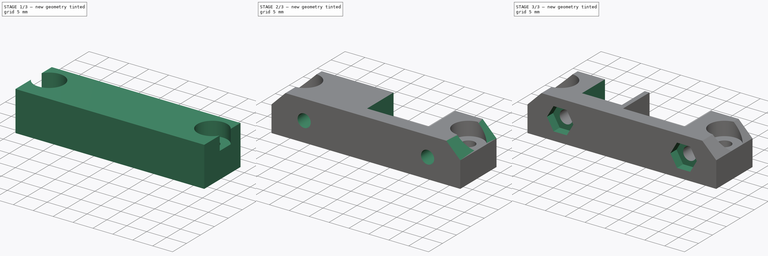
[diagram: build sequence overview — one tinted view per stage of 3, left to right]
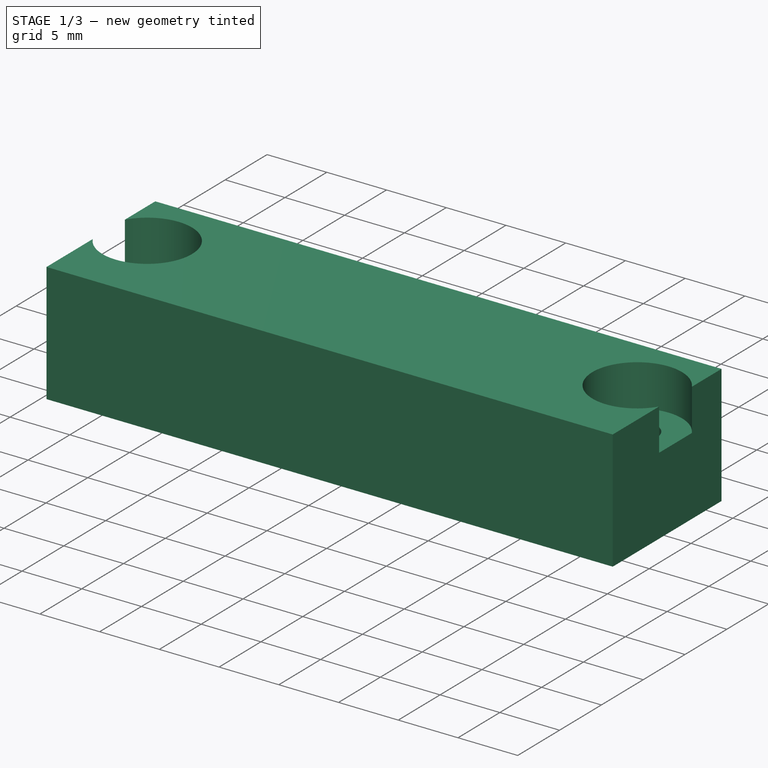
[diagram: stage 1 of 3 — iso view after this stage's code; geometry added in this stage tinted green]
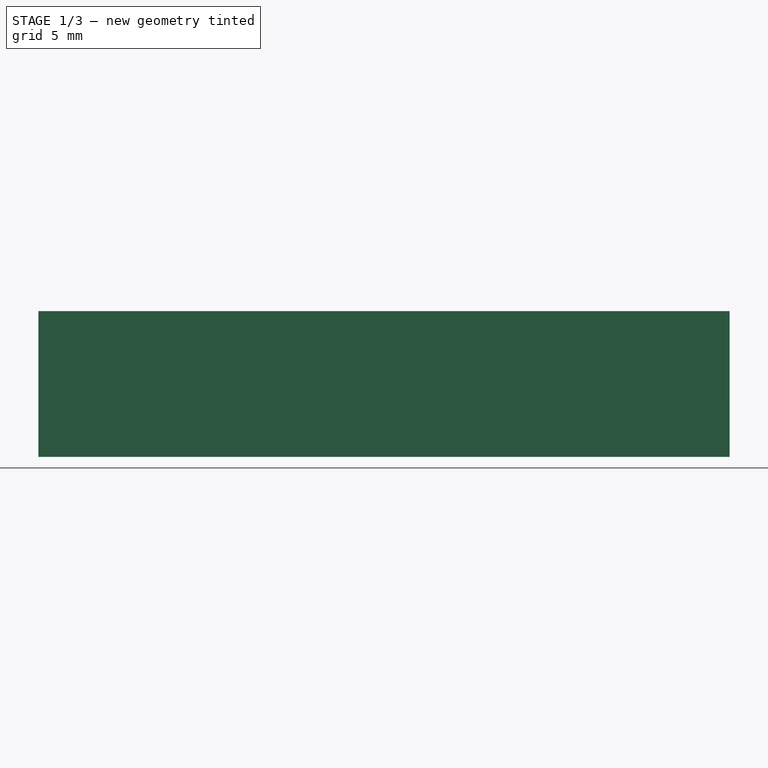
[diagram: stage 1 of 3 — front view after this stage's code; geometry added in this stage tinted green]
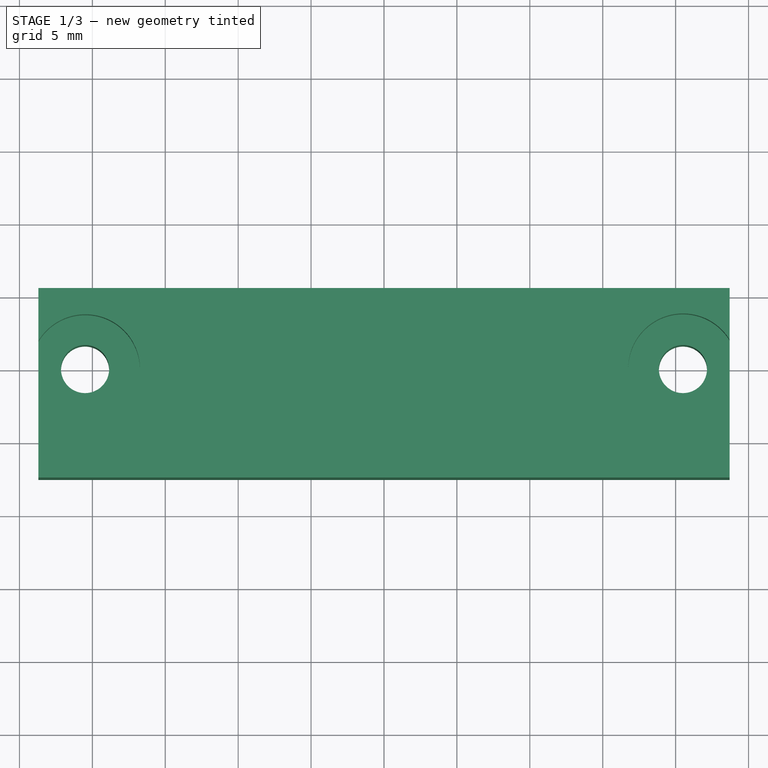
[diagram: stage 1 of 3 — top view after this stage's code; geometry added in this stage tinted green]
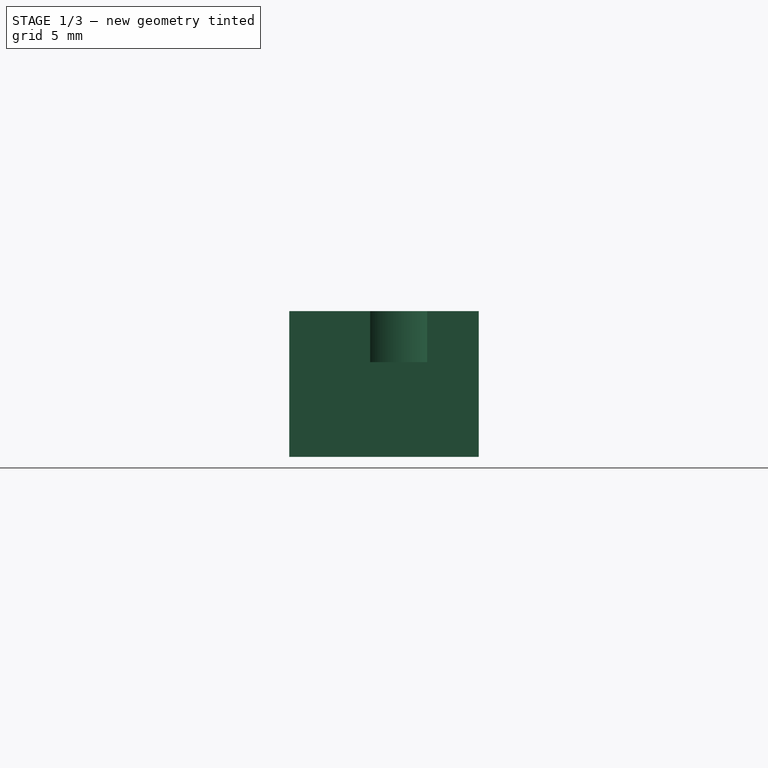
[diagram: stage 1 of 3 — right view after this stage's code; geometry added in this stage tinted green]
FCSTD DOCUMENT  (FreeCAD 0.18R16131 (Git))
Label: XT60+XT30Clip1
License: All rights reserved
LicenseURL: http://en.wikipedia.org/wiki/All_rights_reserved
objects: Sketcher::SketchObject×7, PartDesign::Pocket×6, PartDesign::Pad×1, PartDesign::Plane×1, PartDesign::Body×1, App::Part×1
note: 23 computed .brp shape members not serialized (recipe doc carries the construction recipe); baked Part::Feature solids carry a one-line shape summary decoded from their .brp

FEATURE [Sketcher::SketchObject] Sketch
  MapMode = 5
  Support = -> [XY_Plane001]
  sketch-geometry (6):
    g0: LineSegment StartX=-23.7 StartY=-7.5 StartZ=0 EndX=23.7 EndY=-7.5 EndZ=0
    g1: LineSegment StartX=23.7 StartY=-7.5 StartZ=0 EndX=23.7 EndY=5.5 EndZ=0
    g2: LineSegment StartX=23.7 StartY=5.5 StartZ=0 EndX=-23.7 EndY=5.5 EndZ=0
    g3: LineSegment StartX=-23.7 StartY=5.5 StartZ=0 EndX=-23.7 EndY=-7.5 EndZ=0
    g4: Circle CenterX=-20.5 CenterY=0 CenterZ=0 NormalX=0 NormalY=0 NormalZ=1 AngleXU=0 Radius=1.65
    g5: Circle CenterX=20.5 CenterY=0 CenterZ=0 NormalX=0 NormalY=0 NormalZ=1 AngleXU=0 Radius=1.65
  constraints (16):
    c: Coincident(g0,g1)
    c: Coincident(g1,g2)
    c: Coincident(g2,g3)
    c: Coincident(g3,g0)
    c: Horizontal(g0)
    c: Vertical(g1)
    c: Distance(g2) = 47.4
    c: Symmetric(g2,g1,g-2)
    c: PointOnObject(g4,g-1)
    c: Equal(g4,g5)
    c: Radius(g4) = 1.65
    c: Symmetric(g4,g5,g-2)
    c: Distance(g5,g4) = 41
    c: DistanceY(g-1,g0) = -7.5
    c: DistanceY(g-1,g2) = 5.5
    c: Vertical(g3)
FEATURE [PartDesign::Pad] Pad
  Length = 10
  Length2 = 100
  Profile = -> Sketch
  Reversed = true
  Type = 0
FEATURE [Sketcher::SketchObject] Sketch001
  ExternalGeometry = -> [Sketch]
  MapMode = 5
  Support = -> [XY_Plane001]
  sketch-geometry (2):
    g0: Circle CenterX=-20.4814 CenterY=-0.058129 CenterZ=0 NormalX=0 NormalY=0 NormalZ=1 AngleXU=0 Radius=3.75
    g1: Circle CenterX=20.5 CenterY=0 CenterZ=0 NormalX=0 NormalY=0 NormalZ=1 AngleXU=0 Radius=3.75
  constraints (2):
    c: Equal(g0,g1)
    c: Radius(g0) = 3.75
FEATURE [PartDesign::Pocket] Pocket
  BaseFeature = -> Pad
  Length = 3.5
  Length2 = 100
  Profile = -> Sketch001
  Type = 0
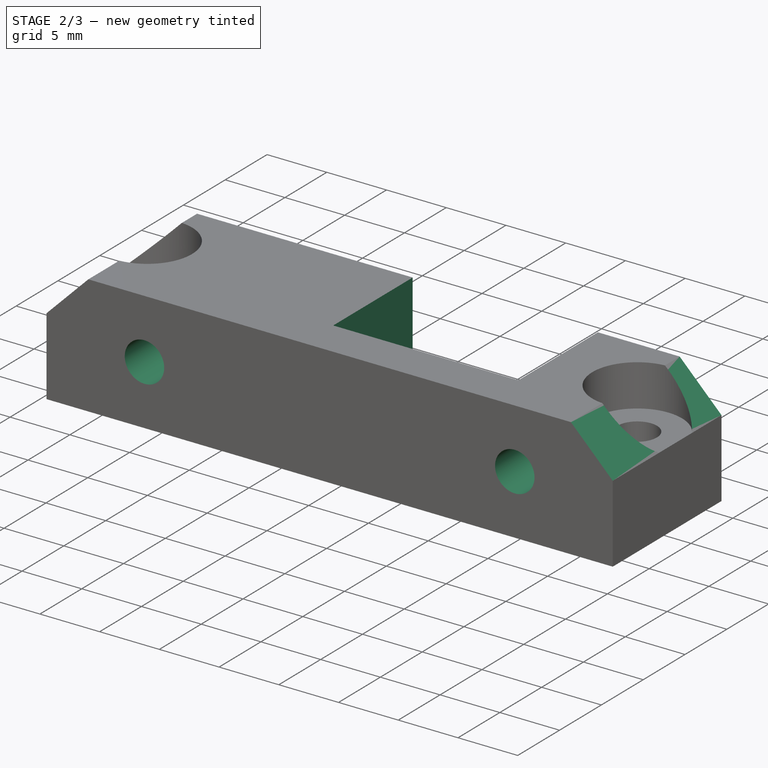
[diagram: stage 2 of 3 — iso view after this stage's code; geometry added in this stage tinted green]
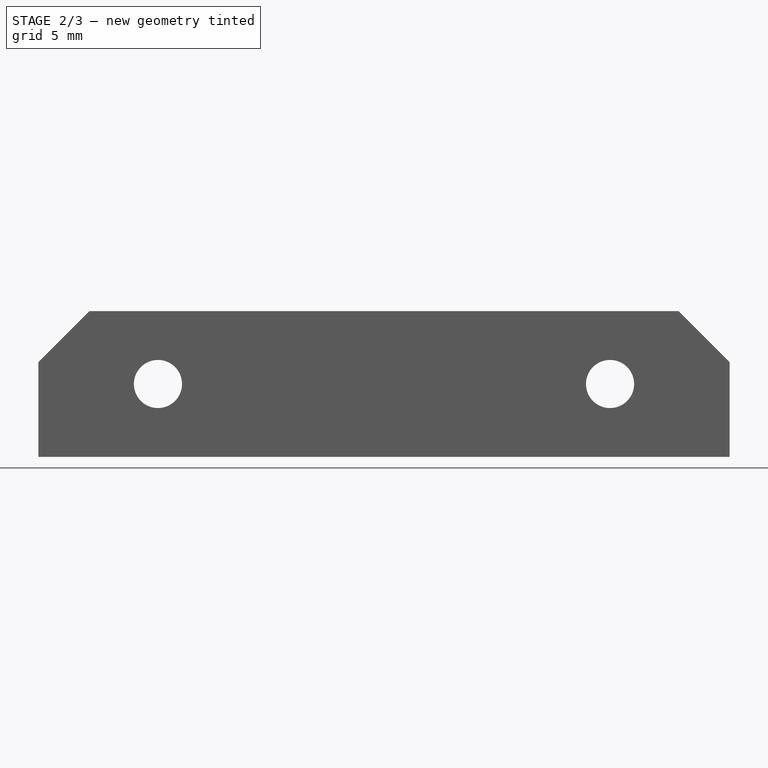
[diagram: stage 2 of 3 — front view after this stage's code; geometry added in this stage tinted green]
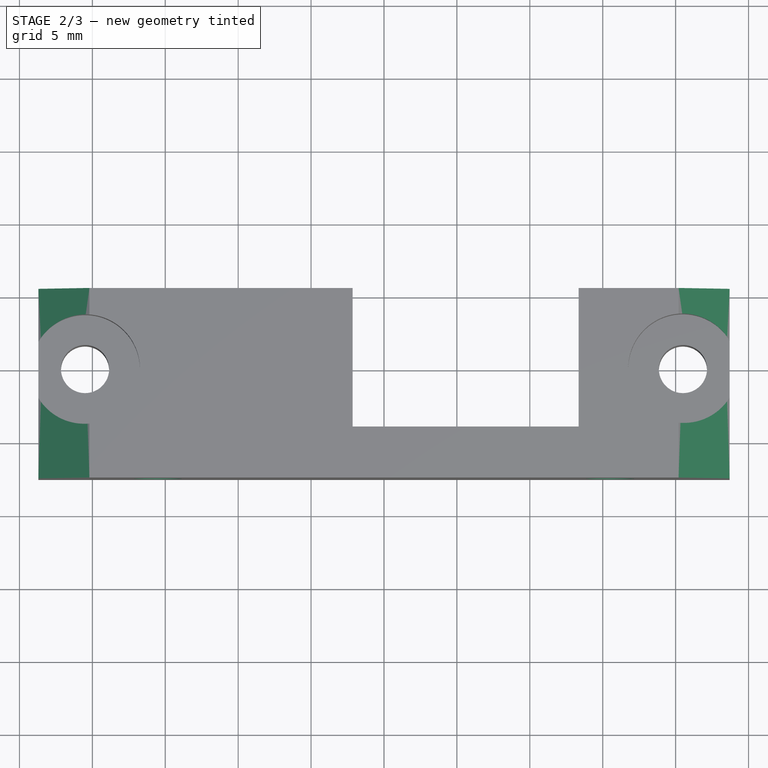
[diagram: stage 2 of 3 — top view after this stage's code; geometry added in this stage tinted green]
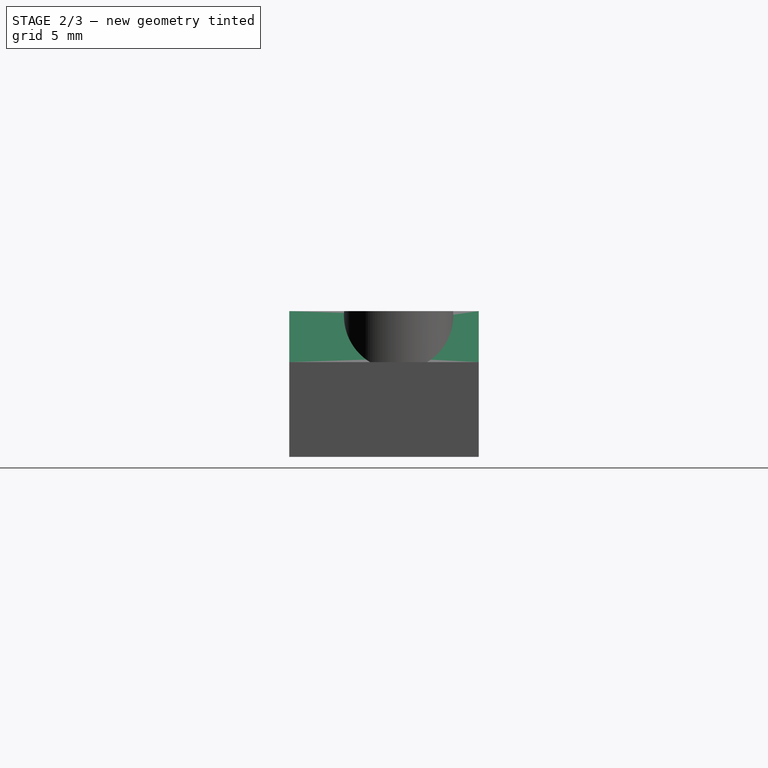
[diagram: stage 2 of 3 — right view after this stage's code; geometry added in this stage tinted green]
FEATURE [Sketcher::SketchObject] Sketch002
  MapMode = 5
  Placement = pos=(0,0,0) rot=(1,0,0;1.5708rad)
  Support = -> [XZ_Plane001]
  sketch-geometry (8):
    g0: LineSegment [constr] StartX=-13.35 StartY=0 StartZ=0 EndX=-3.35 EndY=0 EndZ=0
    g1: LineSegment [constr] StartX=-3.35 StartY=0 StartZ=0 EndX=-3.35 EndY=-10 EndZ=0
    g2: LineSegment [constr] StartX=-3.35 StartY=-10 StartZ=0 EndX=-13.35 EndY=-10 EndZ=0
    g3: LineSegment [constr] StartX=-13.35 StartY=-10 StartZ=0 EndX=-13.35 EndY=0 EndZ=0
    g4: LineSegment StartX=-2.15 StartY=0 StartZ=0 EndX=13.35 EndY=0 EndZ=0
    g5: LineSegment StartX=13.35 StartY=0 StartZ=0 EndX=13.35 EndY=-10 EndZ=0
    g6: LineSegment StartX=13.35 StartY=-10 StartZ=0 EndX=-2.15 EndY=-10 EndZ=0
    g7: LineSegment StartX=-2.15 StartY=-10 StartZ=0 EndX=-2.15 EndY=0 EndZ=0
  constraints (23):
    c: Coincident(g0,g1)
    c: Coincident(g1,g2)
    c: Coincident(g2,g3)
    c: Coincident(g3,g0)
    c: Horizontal(g0)
    c: Horizontal(g2)
    c: Vertical(g1)
    c: Vertical(g3)
    c: PointOnObject(g0,g-1)
    c: Coincident(g4,g5)
    c: Coincident(g5,g6)
    c: Coincident(g6,g7)
    c: Coincident(g7,g4)
    c: Horizontal(g4)
    c: Horizontal(g6)
    c: Vertical(g5)
    c: Vertical(g7)
    c: Equal(g3,g5)
    c: Distance(g3) = 10
    c: Distance(g0,g4) = 1.2
    c: Distance(g4) = 15.5
    c: Distance(g0) = 10
    c: Symmetric(g0,g4,g-2)
FEATURE [PartDesign::Pocket] Pocket001
  BaseFeature = -> Pocket
  Length = 100
  Length2 = 4
  Profile = -> Sketch002
  Type = 4
FEATURE [Sketcher::SketchObject] Sketch003
  MapMode = 5
  Placement = pos=(0,0,0) rot=(1,0,0;1.5708rad)
  Support = -> [XZ_Plane001]
  sketch-geometry (2):
    g0: Circle CenterX=-15.5 CenterY=-5 CenterZ=0 NormalX=0 NormalY=0 NormalZ=1 AngleXU=0 Radius=1.65
    g1: Circle CenterX=15.5 CenterY=-5 CenterZ=0 NormalX=0 NormalY=0 NormalZ=1 AngleXU=0 Radius=1.65
  constraints (5):
    c: Symmetric(g0,g1,g-2)
    c: DistanceY(g-1,g1) = -5
    c: Radius(g0) = 1.65
    c: Equal(g0,g1)
    c: Distance(g0,g1) = 31
FEATURE [PartDesign::Pocket] Pocket002
  BaseFeature = -> Pocket001
  Length = 5
  Length2 = 100
  Midplane = true
  Profile = -> Sketch003
  Type = 1
FEATURE [Sketcher::SketchObject] Sketch004
  MapMode = 5
  Placement = pos=(0,0,0) rot=(1,0,0;1.5708rad)
  Support = -> [XZ_Plane001]
  sketch-geometry (6):
    g0: LineSegment StartX=-20.2 StartY=0 StartZ=0 EndX=-23.7 EndY=-3.5 EndZ=0
    g1: LineSegment StartX=-23.7 StartY=-3.5 StartZ=0 EndX=-23.7 EndY=0 EndZ=0
    g2: LineSegment StartX=-23.7 StartY=0 StartZ=0 EndX=-20.2 EndY=0 EndZ=0
    g3: LineSegment StartX=20.2 StartY=0 StartZ=0 EndX=23.7 EndY=0 EndZ=0
    g4: LineSegment StartX=20.2 StartY=0 StartZ=0 EndX=23.7 EndY=-3.5 EndZ=0
    g5: LineSegment StartX=23.7 StartY=0 StartZ=0 EndX=23.7 EndY=-3.5 EndZ=0
  constraints (17):
    c: PointOnObject(g0,g-1)
    c: Coincident(g1,g0)
    c: PointOnObject(g1,g-1)
    c: Vertical(g1)
    c: Coincident(g2,g1)
    c: Coincident(g2,g0)
    c: PointOnObject(g3,g-1)
    c: Coincident(g4,g3)
    c: Coincident(g5,g3)
    c: Coincident(g5,g4)
    c: Vertical(g5)
    c: Symmetric(g3,g0,g-2)
    c: Equal(g2,g3)
    c: Equal(g1,g5)
    c: Equal(g2,g1)
    c: Distance(g0,g3) = 40.4
    c: Distance(g2) = 3.5
FEATURE [PartDesign::Pocket] Pocket003
  BaseFeature = -> Pocket002
  Length = 5
  Length2 = 100
  Midplane = true
  Profile = -> Sketch004
  Type = 1
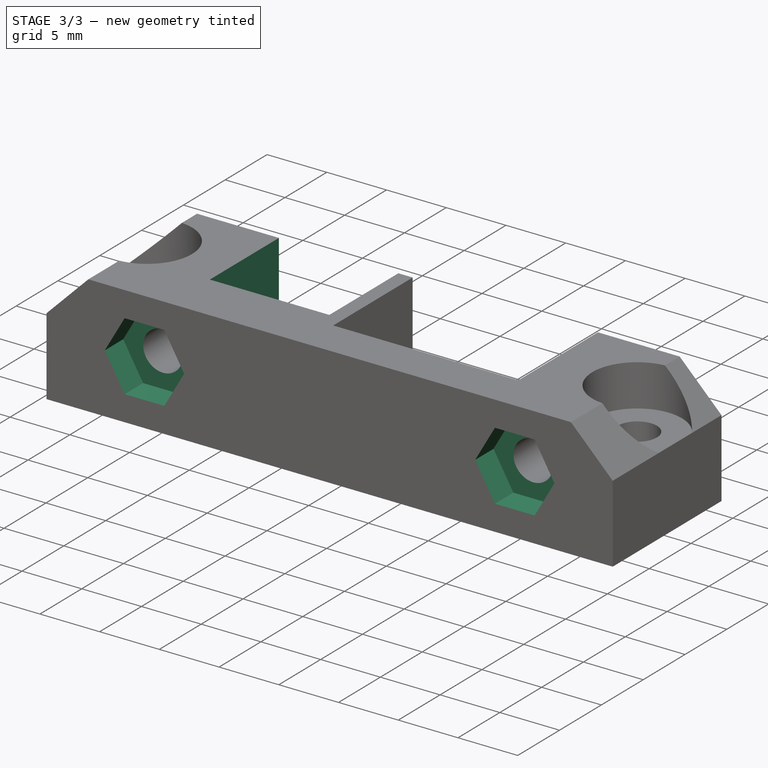
[diagram: stage 3 of 3 — iso view after this stage's code; geometry added in this stage tinted green]
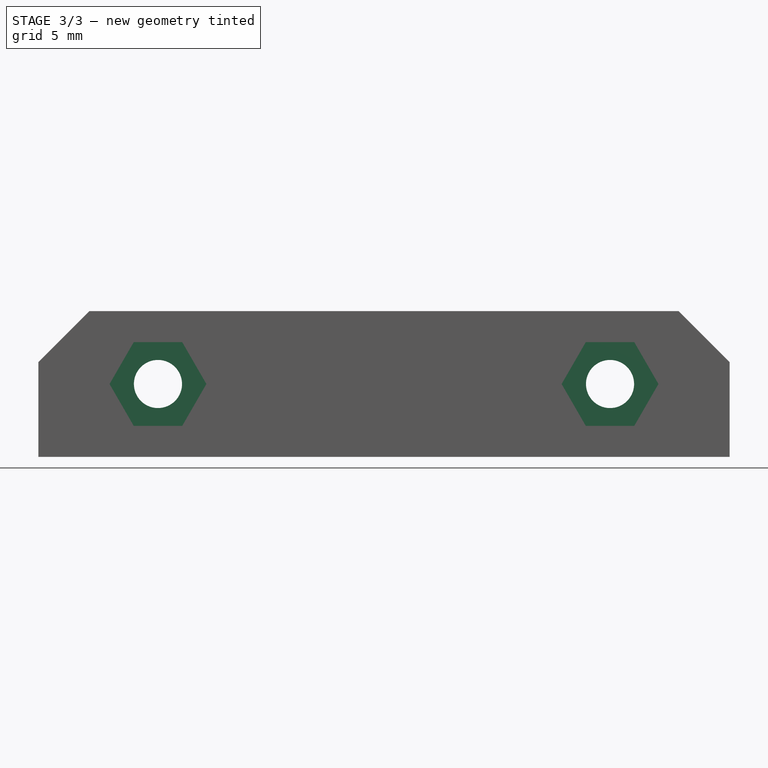
[diagram: stage 3 of 3 — front view after this stage's code; geometry added in this stage tinted green]
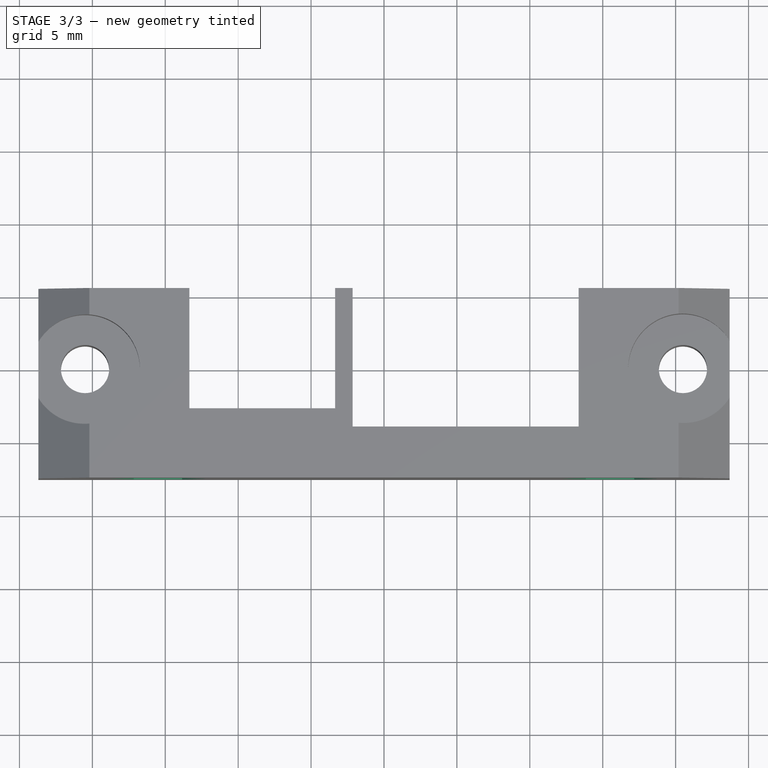
[diagram: stage 3 of 3 — top view after this stage's code; geometry added in this stage tinted green]
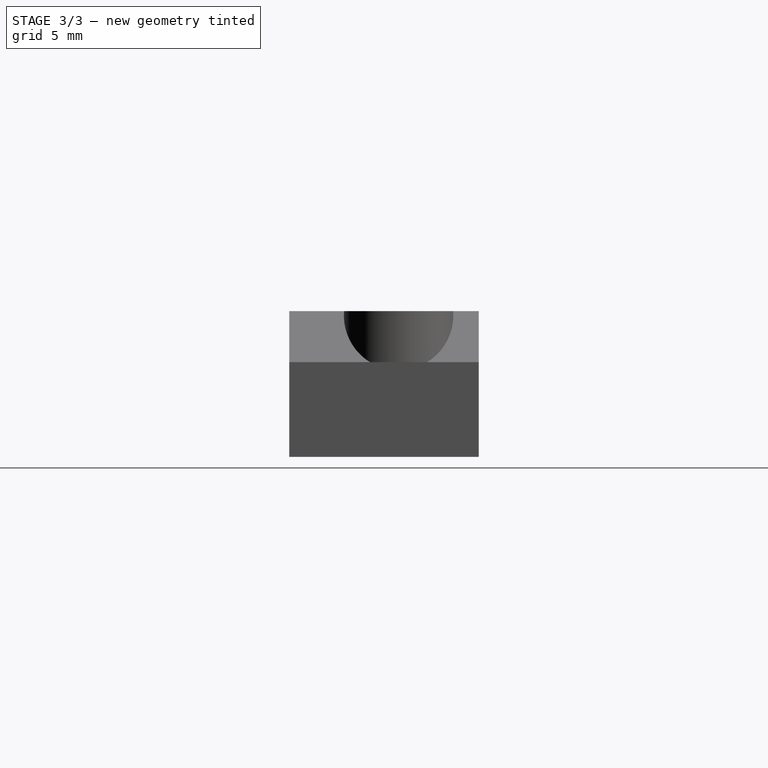
[diagram: stage 3 of 3 — right view after this stage's code; geometry added in this stage tinted green]
FEATURE [PartDesign::Plane] DatumPlane
  AttachmentOffset = pos=(0,0,5.3) rot=(0,0,1;0rad)
  Length = 24
  MapMode = 5
  Placement = pos=(0,-5.3,-1.2e-15) rot=(1,0,0;1.5708rad)
  ResizeMode = 0
  Support = -> [XZ_Plane001]
  Width = 24
FEATURE [Sketcher::SketchObject] Sketch005
  ExternalGeometry = -> [Sketch003]
  MapMode = 5
  Placement = pos=(0,-5.3,-1.2e-15) rot=(1,0,0;1.5708rad)
  Support = -> [DatumPlane]
  sketch-geometry (14):
    g0: LineSegment StartX=-13.8401 StartY=-7.875 StartZ=0 EndX=-12.1802 EndY=-5 EndZ=0
    g1: LineSegment StartX=-12.1802 StartY=-5 StartZ=0 EndX=-13.8401 EndY=-2.125 EndZ=0
    g2: LineSegment StartX=-13.8401 StartY=-2.125 StartZ=0 EndX=-17.1599 EndY=-2.125 EndZ=0
    g3: LineSegment StartX=-17.1599 StartY=-2.125 StartZ=0 EndX=-18.8198 EndY=-5 EndZ=0
    g4: LineSegment StartX=-18.8198 StartY=-5 StartZ=0 EndX=-17.1599 EndY=-7.875 EndZ=0
    g5: LineSegment StartX=-17.1599 StartY=-7.875 StartZ=0 EndX=-13.8401 EndY=-7.875 EndZ=0
    g6: Circle [constr] CenterX=-15.5 CenterY=-5 CenterZ=0 NormalX=0 NormalY=0 NormalZ=1 AngleXU=0 Radius=3.31976
    g7: LineSegment StartX=17.1599 StartY=-7.875 StartZ=0 EndX=18.8198 EndY=-5 EndZ=0
    g8: LineSegment StartX=18.8198 StartY=-5 StartZ=0 EndX=17.1599 EndY=-2.125 EndZ=0
    g9: LineSegment StartX=17.1599 StartY=-2.125 StartZ=0 EndX=13.8401 EndY=-2.125 EndZ=0
    g10: LineSegment StartX=13.8401 StartY=-2.125 StartZ=0 EndX=12.1802 EndY=-5 EndZ=0
    g11: LineSegment StartX=12.1802 StartY=-5 StartZ=0 EndX=13.8401 EndY=-7.875 EndZ=0
    g12: LineSegment StartX=13.8401 StartY=-7.875 StartZ=0 EndX=17.1599 EndY=-7.875 EndZ=0
    g13: Circle [constr] CenterX=15.5 CenterY=-5 CenterZ=0 NormalX=0 NormalY=0 NormalZ=1 AngleXU=0 Radius=3.31976
  constraints (32):
    c: Coincident(g0,g1)
    c: Coincident(g1,g2)
    c: Coincident(g2,g3)
    c: Coincident(g3,g4)
    c: Coincident(g4,g5)
    c: Coincident(g5,g0)
    c: Equal(g0, g1-g5) x5
    c: PointOnObject(g0,g6)
    c: PointOnObject(g1,g6)
    c: PointOnObject(g2,g6)
    c: PointOnObject(g3,g6)
    c: PointOnObject(g4,g6)
    c: PointOnObject(g5,g6)
    c: Coincident(g6,g-3)
    c: Coincident(g7,g8)
    c: Coincident(g8,g9)
    c: Coincident(g9,g10)
    c: Coincident(g10,g11)
    c: Coincident(g11,g12)
    c: Coincident(g12,g7)
    c: Equal(g7, g8-g12) x5
    c: PointOnObject(g7,g13)
    c: PointOnObject(g8,g13)
    c: PointOnObject(g9,g13)
    c: PointOnObject(g10,g13)
    c: PointOnObject(g11,g13)
    c: PointOnObject(g12,g13)
    c: Coincident(g13,g-4)
    c: Equal(g5,g12)
    c: Horizontal(g5)
    c: Horizontal(g12)
    c: Distance(g4,g2) = 5.75
FEATURE [PartDesign::Pocket] Pocket004
  BaseFeature = -> Pocket003
  Length = 5
  Length2 = 100
  Profile = -> Sketch005
  Reversed = true
  Type = 1
FEATURE [Sketcher::SketchObject] Sketch006
  MapMode = 5
  Placement = pos=(0,0,0) rot=(1,0,0;1.5708rad)
  Support = -> [XZ_Plane001]
  sketch-geometry (8):
    g0: LineSegment StartX=-13.35 StartY=0 StartZ=0 EndX=-3.35 EndY=0 EndZ=0
    g1: LineSegment StartX=-3.35 StartY=0 StartZ=0 EndX=-3.35 EndY=-10 EndZ=0
    g2: LineSegment StartX=-3.35 StartY=-10 StartZ=0 EndX=-13.35 EndY=-10 EndZ=0
    g3: LineSegment StartX=-13.35 StartY=-10 StartZ=0 EndX=-13.35 EndY=0 EndZ=0
    g4: LineSegment [constr] StartX=-2.15 StartY=0 StartZ=0 EndX=13.35 EndY=0 EndZ=0
    g5: LineSegment [constr] StartX=13.35 StartY=0 StartZ=0 EndX=13.35 EndY=-10 EndZ=0
    g6: LineSegment [constr] StartX=13.35 StartY=-10 StartZ=0 EndX=-2.15 EndY=-10 EndZ=0
    g7: LineSegment [constr] StartX=-2.15 StartY=-10 StartZ=0 EndX=-2.15 EndY=0 EndZ=0
  constraints (23):
    c: Coincident(g0,g1)
    c: Coincident(g1,g2)
    c: Coincident(g2,g3)
    c: Coincident(g3,g0)
    c: Horizontal(g0)
    c: Horizontal(g2)
    c: Vertical(g1)
    c: Vertical(g3)
    c: PointOnObject(g0,g-1)
    c: Coincident(g4,g5)
    c: Coincident(g5,g6)
    c: Coincident(g6,g7)
    c: Coincident(g7,g4)
    c: Horizontal(g4)
    c: Horizontal(g6)
    c: Vertical(g5)
    c: Vertical(g7)
    c: Equal(g3,g5)
    c: Distance(g3) = 10
    c: Distance(g0,g4) = 1.2
    c: Distance(g4) = 15.5
    c: Distance(g0) = 10
    c: Symmetric(g0,g4,g-2)
FEATURE [PartDesign::Pocket] Pocket005
  BaseFeature = -> Pocket004
  Length = 100
  Length2 = 2.75
  Profile = -> Sketch006
  Type = 4
FEATURE [PartDesign::Body] Body
  Group = -> [Sketch,Pad,Sketch001,Pocket,Sketch002,Pocket001,Sketch003,Pocket002,Sketch004,Pocket003,Sketch005,DatumPlane,Pocket004,Sketch006,Pocket005]
  Origin = -> Origin001
  Tip = -> Pocket005
FEATURE [App::Part] Part
  Group = -> [Body]
  Origin = -> Origin
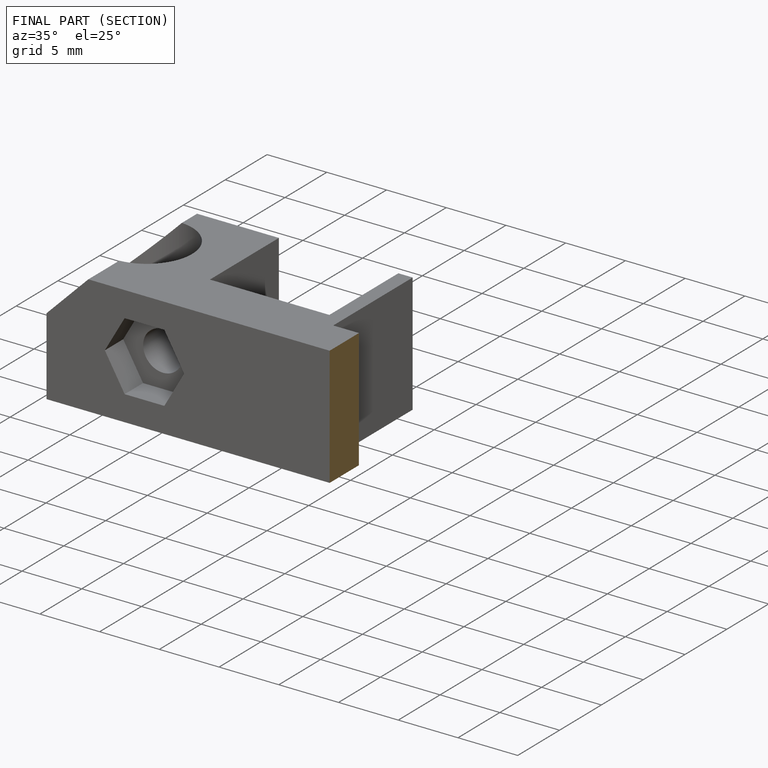
[diagram: finished part — half-section view (interior)]
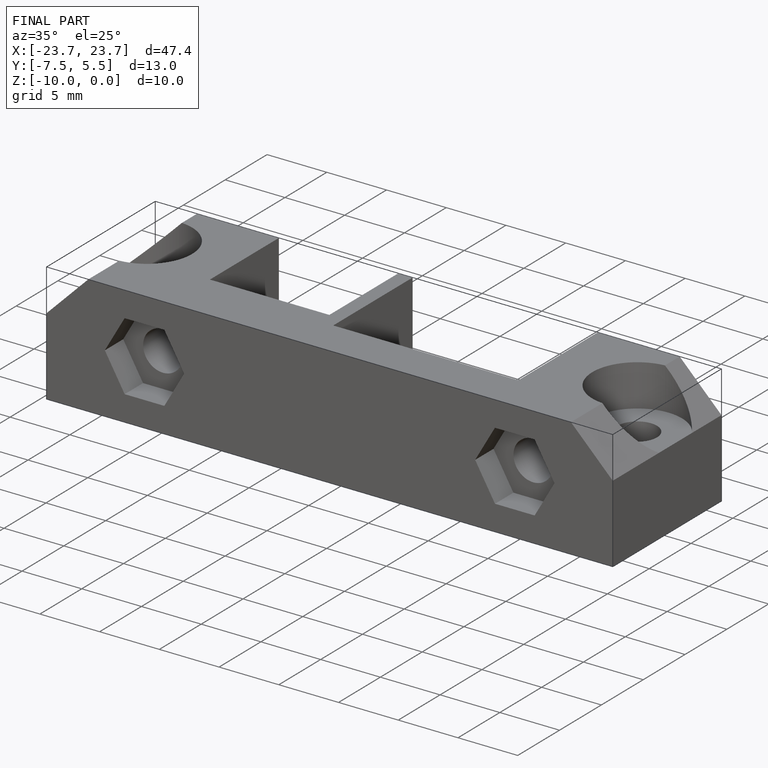
[diagram: finished part — iso view with bounding-box wireframe]
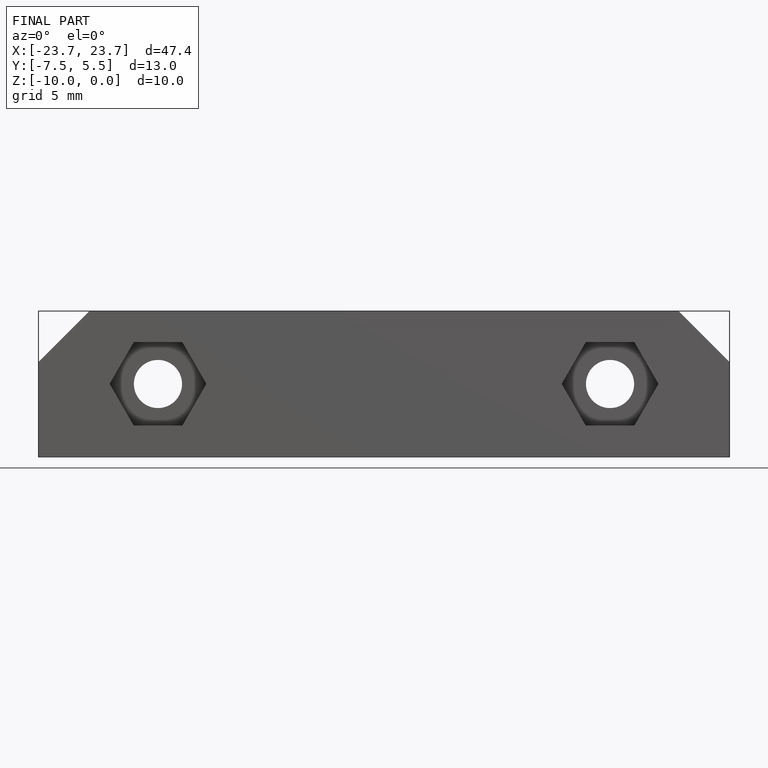
[diagram: finished part — front view with bounding-box wireframe]
